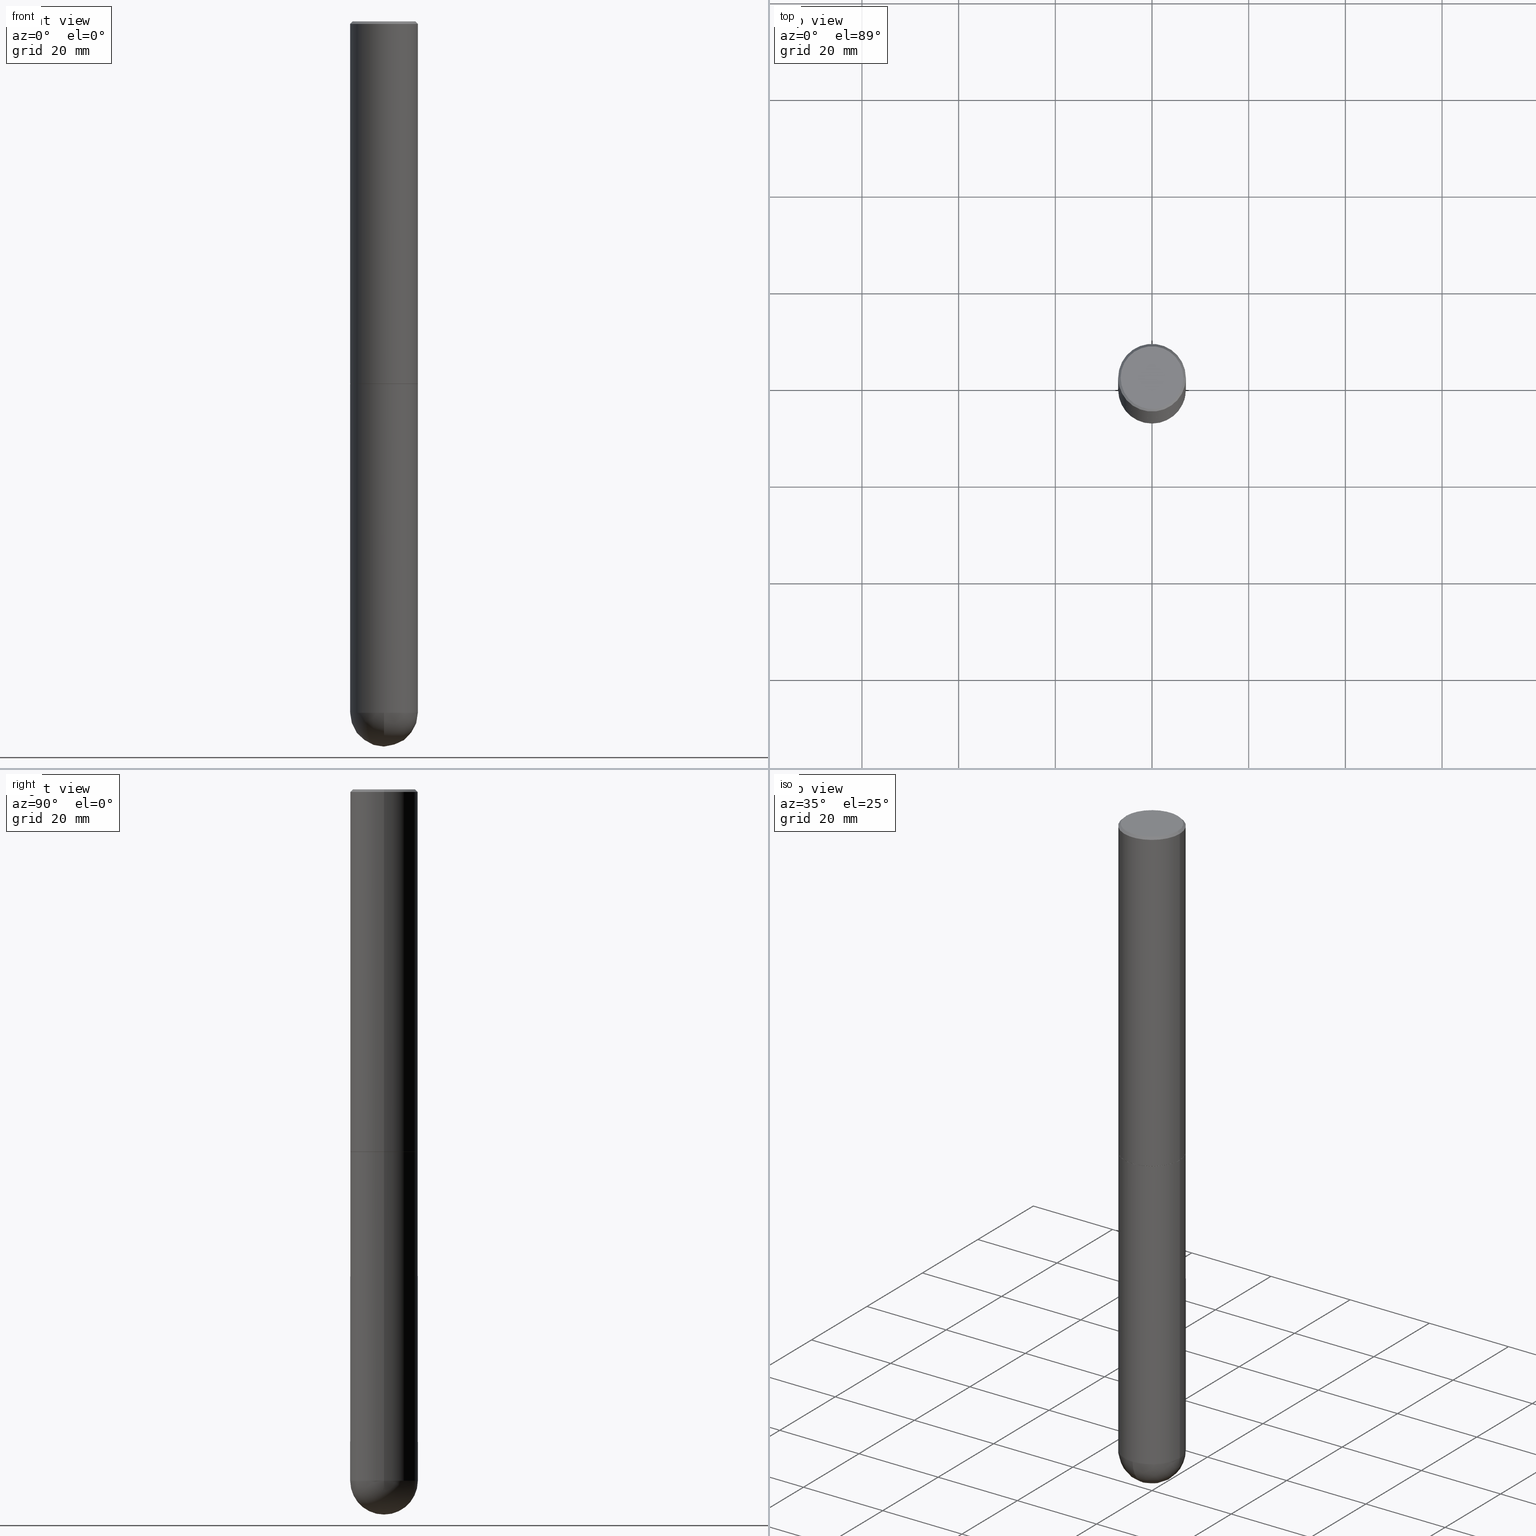
[diagram: canonical four-view strip — front | top / right | iso, engineering-drawing reading convention]
A machine part, canonical four-view strip (front | top / right | iso — engineering-drawing reading convention). The complete STEP part file that produces these views, byte-faithful:
ISO-10303-21;
HEADER;
FILE_DESCRIPTION (( 'STEP AP203' ),
    '1' );
FILE_NAME ('49604.STEP',
    '2024-04-10T12:29:55',
    ( '' ),
    ( '' ),
    'SwSTEP 2.0',
    'SolidWorks 2023',
    '' );
FILE_SCHEMA (( 'CONFIG_CONTROL_DESIGN' ));
ENDSEC;

DATA;
#1 = CARTESIAN_POINT ( 'NONE',  ( 7.220735744022853640E-29, -1.030929694920215659E-14, -2.952700000000000546 ) ) ;
#2 = CONICAL_SURFACE ( 'NONE', #311, 0.2756000000000000116, 0.7853981633974469467 ) ;
#3 = AXIS2_PLACEMENT_3D ( 'NONE', #215, #186, #182 ) ;
#4 = CALENDAR_DATE ( 2024, 10, 4 ) ;
#5 = CARTESIAN_POINT ( 'NONE',  ( -0.2756000000000000116, 1.854674887193472050E-15, -0.02000000000000006287 ) ) ;
#6 = ORIENTED_EDGE ( 'NONE', *, *, #56, .F. ) ;
#7 = LINE ( 'NONE', #5, #75 ) ;
#8 = CARTESIAN_POINT ( 'NONE',  ( -0.2756000000000000116, -1.302473808962275237E-14, -2.952700000000000102 ) ) ;
#9 = VERTEX_POINT ( 'NONE', #366 ) ;
#10 = AXIS2_PLACEMENT_3D ( 'NONE', #67, #244, #185 ) ;
#11 = AXIS2_PLACEMENT_3D ( 'NONE', #306, #376, #32 ) ;
#12 = CC_DESIGN_PERSON_AND_ORGANIZATION_ASSIGNMENT ( #221, #383, ( #88 ) ) ;
#13 = DATE_AND_TIME ( #190, #128 ) ;
#14 = ORIENTED_EDGE ( 'NONE', *, *, #181, .T. ) ;
#15 = CARTESIAN_POINT ( 'NONE',  ( -0.2756000000000002337, 1.958255779754837773E-15, -1.355658510874253128E-29 ) ) ;
#16 = DIRECTION ( 'NONE',  ( 6.982962677686267499E-15, 1.000000000000000000, 0.000000000000000000 ) ) ;
#17 = ORIENTED_EDGE ( 'NONE', *, *, #156, .T. ) ;
#18 = DIRECTION ( 'NONE',  ( -2.445468806185136597E-29, 3.491481338843145583E-15, 1.000000000000000000 ) ) ;
#19 = CC_DESIGN_PERSON_AND_ORGANIZATION_ASSIGNMENT ( #80, #350, ( #144 ) ) ;
#20 = AXIS2_PLACEMENT_3D ( 'NONE', #23, #269, #115 ) ;
#21 = CARTESIAN_POINT ( 'NONE',  ( 1.343662505402781410E-28, -2.013087315769307636E-14, -5.629900000000000126 ) ) ;
#22 = CARTESIAN_POINT ( 'NONE',  ( 7.218290275216666916E-29, -1.030580546786331359E-14, -2.951700000000000212 ) ) ;
#23 = CARTESIAN_POINT ( 'NONE',  ( 7.220735744022853640E-29, -1.030929694920215659E-14, -2.952700000000000546 ) ) ;
#24 = AXIS2_PLACEMENT_3D ( 'NONE', #242, #60, #248 ) ;
#25 = CIRCLE ( 'NONE', #323, 0.2756000000000000671 ) ;
#26 = ORIENTED_EDGE ( 'NONE', *, *, #103, .T. ) ;
#27 = DATE_AND_TIME ( #126, #268 ) ;
#28 = ADVANCED_FACE ( 'NONE', ( #179 ), #307, .F. ) ;
#29 = CONICAL_SURFACE ( 'NONE', #257, 0.2756000000000000116, 0.7853981633974469467 ) ;
#30 = CARTESIAN_POINT ( 'NONE',  ( 7.220735744022853640E-29, -1.030929694920215659E-14, -2.952700000000000546 ) ) ;
#31 = DIRECTION ( 'NONE',  ( 0.000000000000000000, 0.000000000000000000, 1.000000000000000000 ) ) ;
#32 = DIRECTION ( 'NONE',  ( 1.000000000000000000, -6.982962677686264344E-15, 0.000000000000000000 ) ) ;
#33 = CARTESIAN_POINT ( 'NONE',  ( 0.2746000000000000107, -1.222681850049480396E-14, -2.952700000000000546 ) ) ;
#34 = PERSON_AND_ORGANIZATION ( #321, #106 ) ;
#35 = EDGE_CURVE ( 'NONE', #379, #316, #58, .T. ) ;
#36 = CARTESIAN_POINT ( 'NONE',  ( 0.2756000000000004557, -1.223030998183365327E-14, -2.951700000000000212 ) ) ;
#37 = CONICAL_SURFACE ( 'NONE', #82, 0.2746000000000000107, 0.7853981633974995713 ) ;
#38 = ORIENTED_EDGE ( 'NONE', *, *, #231, .T. ) ;
#39 = COORDINATED_UNIVERSAL_TIME_OFFSET ( 5, 0, .BEHIND. ) ;
#40 = COORDINATED_UNIVERSAL_TIME_OFFSET ( 5, 0, .BEHIND. ) ;
#41 = ORIENTED_EDGE ( 'NONE', *, *, #35, .F. ) ;
#42 = CC_DESIGN_DATE_AND_TIME_ASSIGNMENT ( #13, #133, ( #88 ) ) ;
#43 = CARTESIAN_POINT ( 'NONE',  ( 4.890937612370288923E-31, -6.982962677686312563E-17, -0.02000000000000006287 ) ) ;
#44 = EDGE_CURVE ( 'NONE', #322, #50, #219, .T. ) ;
#45 = DIRECTION ( 'NONE',  ( -1.000000000000000000, 6.982962677686265922E-15, -4.876176775795935793E-29 ) ) ;
#46 = ORIENTED_EDGE ( 'NONE', *, *, #264, .T. ) ;
#47 = CARTESIAN_POINT ( 'NONE',  ( 4.890937612370288923E-31, -6.982962677686312563E-17, -0.02000000000000006287 ) ) ;
#48 = EDGE_CURVE ( 'NONE', #85, #77, #385, .T. ) ;
#49 = CARTESIAN_POINT ( 'NONE',  ( 4.890937612370288923E-31, -6.982962677686312563E-17, -0.02000000000000006287 ) ) ;
#50 = VERTEX_POINT ( 'NONE', #63 ) ;
#51 = FACE_OUTER_BOUND ( 'NONE', #239, .T. ) ;
#52 = VECTOR ( 'NONE', #217, 39.37007874015748143 ) ;
#53 = CIRCLE ( 'NONE', #165, 0.2746000000000000107 ) ;
#54 = DIRECTION ( 'NONE',  ( -2.445468806185136597E-29, 3.491481338843145583E-15, 1.000000000000000000 ) ) ;
#55 = VERTEX_POINT ( 'NONE', #213 ) ;
#56 = EDGE_CURVE ( 'NONE', #233, #336, #153, .T. ) ;
#57 = ORIENTED_EDGE ( 'NONE', *, *, #91, .T. ) ;
#58 = CIRCLE ( 'NONE', #229, 0.2756000000000000671 ) ;
#59 = AXIS2_PLACEMENT_3D ( 'NONE', #370, #296, #149 ) ;
#60 = DIRECTION ( 'NONE',  ( -2.445468806185136597E-29, 3.491481338843145583E-15, 1.000000000000000000 ) ) ;
#61 = APPLICATION_PROTOCOL_DEFINITION ( 'international standard', 'config_control_design', 1994, #158 ) ;
#62 = ADVANCED_FACE ( 'NONE', ( #93 ), #404, .T. ) ;
#63 = CARTESIAN_POINT ( 'NONE',  ( 0.2556000000000001604, -1.857063081596551214E-15, -1.536664496436020733E-16 ) ) ;
#64 =( LENGTH_UNIT ( ) NAMED_UNIT ( * ) SI_UNIT ( $, .METRE. ) );
#65 = PERSON_AND_ORGANIZATION ( #321, #106 ) ;
#66 = ADVANCED_FACE ( 'NONE', ( #343 ), #2, .T. ) ;
#67 = CARTESIAN_POINT ( 'NONE',  ( 1.343662505402781410E-28, -2.013087315769307636E-14, -5.629900000000000126 ) ) ;
#68 = PERSON_AND_ORGANIZATION_ROLE ( 'creator' ) ;
#69 = AXIS2_PLACEMENT_3D ( 'NONE', #114, #291, #267 ) ;
#70 = CALENDAR_DATE ( 2024, 10, 4 ) ;
#71 = FACE_OUTER_BOUND ( 'NONE', #297, .T. ) ;
#72 = ORIENTED_EDGE ( 'NONE', *, *, #283, .F. ) ;
#73 = PERSON_AND_ORGANIZATION ( #321, #106 ) ;
#74 = EDGE_LOOP ( 'NONE', ( #399, #389, #254, #256, #272 ) ) ;
#75 = VECTOR ( 'NONE', #289, 39.37007874015748143 ) ;
#76 = PRODUCT_RELATED_PRODUCT_CATEGORY ( 'detail', '', ( #398 ) ) ;
#77 = VERTEX_POINT ( 'NONE', #33 ) ;
#78 = LENGTH_MEASURE_WITH_UNIT ( LENGTH_MEASURE( 0.02539999999999999897 ), #64 );
#79 = ORIENTED_EDGE ( 'NONE', *, *, #264, .F. ) ;
#80 = PERSON_AND_ORGANIZATION ( #321, #106 ) ;
#81 = EDGE_LOOP ( 'NONE', ( #224, #329, #41, #331 ) ) ;
#82 = AXIS2_PLACEMENT_3D ( 'NONE', #113, #205, #141 ) ;
#83 = FACE_OUTER_BOUND ( 'NONE', #368, .T. ) ;
#84 = CARTESIAN_POINT ( 'NONE',  ( 7.220735744022853640E-29, -1.030929694920215659E-14, -2.952700000000000546 ) ) ;
#85 = VERTEX_POINT ( 'NONE', #390 ) ;
#86 = FACE_OUTER_BOUND ( 'NONE', #197, .T. ) ;
#87 = DIRECTION ( 'NONE',  ( -2.445468806185136597E-29, 3.491481338843145583E-15, 1.000000000000000000 ) ) ;
#88 = SECURITY_CLASSIFICATION ( '', '', #200 ) ;
#89 = DIRECTION ( 'NONE',  ( -1.000000000000000000, 6.982962677686267499E-15, 0.000000000000000000 ) ) ;
#90 = EDGE_LOOP ( 'NONE', ( #319, #175 ) ) ;
#91 = EDGE_CURVE ( 'NONE', #85, #347, #110, .T. ) ;
#92 = CARTESIAN_POINT ( 'NONE',  ( 0.000000000000000000, 0.000000000000000000, 0.000000000000000000 ) ) ;
#93 = FACE_OUTER_BOUND ( 'NONE', #81, .T. ) ;
#94 = APPLICATION_PROTOCOL_DEFINITION ( 'international standard', 'config_control_design', 1994, #351 ) ;
#95 = ADVANCED_FACE ( 'NONE', ( #71 ), #392, .T. ) ;
#96 = APPROVAL_PERSON_ORGANIZATION ( #183, #147, #209 ) ;
#97 = DIRECTION ( 'NONE',  ( 1.000000000000000000, 0.000000000000000000, 0.000000000000000000 ) ) ;
#98 = SPHERICAL_SURFACE ( 'NONE', #3, 0.2756000000000000671 ) ;
#99 = AXIS2_PLACEMENT_3D ( 'NONE', #302, #407, #342 ) ;
#100 = COORDINATED_UNIVERSAL_TIME_OFFSET ( 5, 0, .BEHIND. ) ;
#101 = PERSON_AND_ORGANIZATION ( #321, #106 ) ;
#102 = DIRECTION ( 'NONE',  ( 1.000000000000000000, -6.982962677686267499E-15, 0.000000000000000000 ) ) ;
#103 = EDGE_CURVE ( 'NONE', #347, #55, #400, .T. ) ;
#104 = CARTESIAN_POINT ( 'NONE',  ( -0.2556000000000001604, 1.819760073805041190E-15, -1.536664496436274155E-16 ) ) ;
#105 = ORIENTED_EDGE ( 'NONE', *, *, #169, .F. ) ;
#106 = ORGANIZATION ( 'UNSPECIFIED', 'UNSPECIFIED', '' ) ;
#107 = DATE_AND_TIME ( #381, #258 ) ;
#108 = PLANE ( 'NONE',  #334 ) ;
#109 = ORIENTED_EDGE ( 'NONE', *, *, #372, .F. ) ;
#110 = LINE ( 'NONE', #225, #210 ) ;
#111 = DIRECTION ( 'NONE',  ( 1.000000000000000000, -6.982962677686264344E-15, 0.000000000000000000 ) ) ;
#112 = ORIENTED_EDGE ( 'NONE', *, *, #349, .F. ) ;
#113 = CARTESIAN_POINT ( 'NONE',  ( 7.220735744022853640E-29, -1.030929694920215659E-14, -2.952700000000000546 ) ) ;
#114 = CARTESIAN_POINT ( 'NONE',  ( 0.000000000000000000, 0.000000000000000000, 0.000000000000000000 ) ) ;
#115 = DIRECTION ( 'NONE',  ( 1.000000000000000000, -6.982962677686265922E-15, 4.876176775795935793E-29 ) ) ;
#116 = ORIENTED_EDGE ( 'NONE', *, *, #212, .F. ) ;
#117 = AXIS2_PLACEMENT_3D ( 'NONE', #30, #278, #249 ) ;
#118 = LOCAL_TIME ( 8, 29, 55.00000000000000000, #193 ) ;
#119 = CARTESIAN_POINT ( 'NONE',  ( 7.218290275216666916E-29, -1.030580546786331359E-14, -2.951700000000000212 ) ) ;
#120 = DIRECTION ( 'NONE',  ( 1.000000000000000000, -6.982962677686264344E-15, 0.000000000000000000 ) ) ;
#121 = CC_DESIGN_DATE_AND_TIME_ASSIGNMENT ( #157, #218, ( #176 ) ) ;
#122 = DIRECTION ( 'NONE',  ( -2.445468806185136597E-29, 3.491481338843145583E-15, 1.000000000000000000 ) ) ;
#123 = PERSON_AND_ORGANIZATION_ROLE ( 'design_owner' ) ;
#124 = DIRECTION ( 'NONE',  ( 0.7071067811865465735, -7.319954787623252890E-15, -0.7071067811865484609 ) ) ;
#125 = CIRCLE ( 'NONE', #154, 0.2756000000000000116 ) ;
#126 = CALENDAR_DATE ( 2024, 10, 4 ) ;
#127 = AXIS2_PLACEMENT_3D ( 'NONE', #119, #288, #362 ) ;
#128 = LOCAL_TIME ( 8, 29, 55.00000000000000000, #40 ) ;
#129 = CARTESIAN_POINT ( 'NONE',  ( 4.890937612370288923E-31, -6.982962677686312563E-17, -0.02000000000000006287 ) ) ;
#130 = ORIENTED_EDGE ( 'NONE', *, *, #212, .T. ) ;
#131 = ADVANCED_FACE ( 'NONE', ( #86 ), #37, .T. ) ;
#132 = DIRECTION ( 'NONE',  ( -2.445468806185136597E-29, 3.491481338843145583E-15, 1.000000000000000000 ) ) ;
#133 = DATE_TIME_ROLE ( 'classification_date' ) ;
#134 = ORIENTED_EDGE ( 'NONE', *, *, #409, .T. ) ;
#135 = CIRCLE ( 'NONE', #152, 0.2756000000000000671 ) ;
#136 = DATE_AND_TIME ( #4, #118 ) ;
#137 = ORIENTED_EDGE ( 'NONE', *, *, #387, .T. ) ;
#138 =( NAMED_UNIT ( * ) SI_UNIT ( $, .STERADIAN. ) SOLID_ANGLE_UNIT ( ) );
#139 = DIRECTION ( 'NONE',  ( 1.000000000000000000, -6.982962677686269077E-15, 0.000000000000000000 ) ) ;
#140 = LINE ( 'NONE', #352, #230 ) ;
#141 = DIRECTION ( 'NONE',  ( 1.000000000000000000, -6.982962677686262766E-15, 0.000000000000000000 ) ) ;
#142 = DIRECTION ( 'NONE',  ( 1.000000000000000000, -6.982962677686262766E-15, 0.000000000000000000 ) ) ;
#143 = CIRCLE ( 'NONE', #345, 0.2756000000000000116 ) ;
#144 = PRODUCT_DEFINITION_FORMATION_WITH_SPECIFIED_SOURCE ( 'ANY', '', #398, .NOT_KNOWN. ) ;
#145 = PLANE ( 'NONE',  #20 ) ;
#146 = ORIENTED_EDGE ( 'NONE', *, *, #283, .T. ) ;
#147 = APPROVAL ( #155, 'UNSPECIFIED' ) ;
#148 = DIMENSIONAL_EXPONENTS ( 1.000000000000000000, 0.000000000000000000, 0.000000000000000000, 0.000000000000000000, 0.000000000000000000, 0.000000000000000000, 0.000000000000000000 ) ;
#149 = DIRECTION ( 'NONE',  ( 1.000000000000000000, -6.982962677686264344E-15, 0.000000000000000000 ) ) ;
#150 = LINE ( 'NONE', #170, #265 ) ;
#151 = EDGE_LOOP ( 'NONE', ( #310, #270, #46, #146 ) ) ;
#152 = AXIS2_PLACEMENT_3D ( 'NONE', #259, #314, #16 ) ;
#153 = LINE ( 'NONE', #410, #52 ) ;
#154 = AXIS2_PLACEMENT_3D ( 'NONE', #49, #328, #361 ) ;
#155 = APPROVAL_STATUS ( 'not_yet_approved' ) ;
#156 = EDGE_CURVE ( 'NONE', #357, #191, #150, .T. ) ;
#157 = DATE_AND_TIME ( #70, #339 ) ;
#158 = APPLICATION_CONTEXT ( 'configuration controlled 3d designs of mechanical parts and assemblies' ) ;
#159 = LINE ( 'NONE', #279, #211 ) ;
#160 = DIRECTION ( 'NONE',  ( -0.7071067811865837660, 7.493145998870485111E-15, 0.7071067811865112684 ) ) ;
#161 = EDGE_CURVE ( 'NONE', #261, #336, #143, .T. ) ;
#162 = APPROVAL_STATUS ( 'not_yet_approved' ) ;
#163 = CARTESIAN_POINT ( 'NONE',  ( 0.2756000000000000116, -1.960582874962697406E-15, -0.02000000000000006287 ) ) ;
#164 = AXIS2_PLACEMENT_3D ( 'NONE', #333, #54, #397 ) ;
#165 = AXIS2_PLACEMENT_3D ( 'NONE', #84, #18, #142 ) ;
#166 = SHAPE_DEFINITION_REPRESENTATION ( #332, #243 ) ;
#167 = ADVANCED_FACE ( 'NONE', ( #83 ), #29, .T. ) ;
#168 = APPROVAL_STATUS ( 'not_yet_approved' ) ;
#169 = EDGE_CURVE ( 'NONE', #292, #316, #293, .T. ) ;
#170 = CARTESIAN_POINT ( 'NONE',  ( 0.2756000000000002337, -1.924504513970336926E-15, 1.343874319409361109E-29 ) ) ;
#171 = ORIENTED_EDGE ( 'NONE', *, *, #335, .T. ) ;
#172 = FACE_OUTER_BOUND ( 'NONE', #207, .T. ) ;
#173 = FACE_OUTER_BOUND ( 'NONE', #74, .T. ) ;
#174 = ORIENTED_EDGE ( 'NONE', *, *, #181, .F. ) ;
#175 = ORIENTED_EDGE ( 'NONE', *, *, #161, .T. ) ;
#176 = PRODUCT_DEFINITION ( 'UNKNOWN', '', #144, #369 ) ;
#177 = CYLINDRICAL_SURFACE ( 'NONE', #246, 0.2756000000000000671 ) ;
#178 = DIRECTION ( 'NONE',  ( -2.445468806185136877E-29, 3.491481338843145188E-15, 1.000000000000000000 ) ) ;
#179 = FACE_OUTER_BOUND ( 'NONE', #402, .T. ) ;
#180 = CIRCLE ( 'NONE', #11, 0.2756000000000000671 ) ;
#181 = EDGE_CURVE ( 'NONE', #347, #357, #299, .T. ) ;
#182 = DIRECTION ( 'NONE',  ( 6.982962677686265922E-15, 1.000000000000000000, -3.964946289788479319E-15 ) ) ;
#183 = PERSON_AND_ORGANIZATION ( #321, #106 ) ;
#184 = EDGE_CURVE ( 'NONE', #336, #261, #206, .T. ) ;
#185 = DIRECTION ( 'NONE',  ( 6.982962677686265922E-15, 1.000000000000000000, -3.964946289788479319E-15 ) ) ;
#186 = DIRECTION ( 'NONE',  ( -1.000000000000000000, 6.982962677686265922E-15, -4.883557194083112901E-29 ) ) ;
#187 = ADVANCED_FACE ( 'NONE', ( #51 ), #177, .T. ) ;
#188 = CYLINDRICAL_SURFACE ( 'NONE', #378, 0.2756000000000002337 ) ;
#189 = ADVANCED_FACE ( 'NONE', ( #172 ), #145, .F. ) ;
#190 = CALENDAR_DATE ( 2024, 10, 4 ) ;
#191 = VERTEX_POINT ( 'NONE', #364 ) ;
#192 = AXIS2_PLACEMENT_3D ( 'NONE', #129, #255, #102 ) ;
#193 = COORDINATED_UNIVERSAL_TIME_OFFSET ( 5, 0, .BEHIND. ) ;
#194 = CARTESIAN_POINT ( 'NONE',  ( -1.958255779754700116E-15, -0.2756000000000199956, -5.629899999999999238 ) ) ;
#195 = ORIENTED_EDGE ( 'NONE', *, *, #349, .T. ) ;
#196 = ORIENTED_EDGE ( 'NONE', *, *, #223, .T. ) ;
#197 = EDGE_LOOP ( 'NONE', ( #204, #57, #371, #112 ) ) ;
#198 = APPROVAL ( #162, 'UNSPECIFIED' ) ;
#199 = DIRECTION ( 'NONE',  ( 2.445468806185136597E-29, -3.491481338843145583E-15, -1.000000000000000000 ) ) ;
#200 = SECURITY_CLASSIFICATION_LEVEL ( 'unclassified' ) ;
#201 = ORIENTED_EDGE ( 'NONE', *, *, #48, .F. ) ;
#202 = DIRECTION ( 'NONE',  ( -2.445468806185136877E-29, 3.491481338843145188E-15, 1.000000000000000000 ) ) ;
#203 = CYLINDRICAL_SURFACE ( 'NONE', #69, 0.2756000000000000671 ) ;
#204 = ORIENTED_EDGE ( 'NONE', *, *, #372, .T. ) ;
#205 = DIRECTION ( 'NONE',  ( -2.445468806185136597E-29, 3.491481338843145583E-15, 1.000000000000000000 ) ) ;
#206 = CIRCLE ( 'NONE', #359, 0.2756000000000000116 ) ;
#207 = EDGE_LOOP ( 'NONE', ( #109, #201 ) ) ;
#208 = MANIFOLD_SOLID_BREP ( 'Body-Move/Copy2[2]', #406 ) ;
#209 = APPROVAL_ROLE ( '' ) ;
#210 = VECTOR ( 'NONE', #160, 39.37007874015748143 ) ;
#211 = VECTOR ( 'NONE', #412, 39.37007874015748143 ) ;
#212 = EDGE_CURVE ( 'NONE', #50, #322, #220, .T. ) ;
#213 = CARTESIAN_POINT ( 'NONE',  ( -0.2756000000000000116, 1.854674887193472050E-15, -0.02000000000000006287 ) ) ;
#214 = MECHANICAL_CONTEXT ( 'NONE', #351, 'mechanical' ) ;
#215 = CARTESIAN_POINT ( 'NONE',  ( 1.343662505402781410E-28, -2.013087315769307636E-14, -5.629900000000000126 ) ) ;
#216 = CIRCLE ( 'NONE', #59, 0.2756000000000000671 ) ;
#217 = DIRECTION ( 'NONE',  ( -2.445468806185136877E-29, 3.491481338843145188E-15, 1.000000000000000000 ) ) ;
#218 = DATE_TIME_ROLE ( 'creation_date' ) ;
#219 = CIRCLE ( 'NONE', #24, 0.2556000000000001604 ) ;
#220 = CIRCLE ( 'NONE', #373, 0.2556000000000001604 ) ;
#221 = PERSON_AND_ORGANIZATION ( #321, #106 ) ;
#222 = CARTESIAN_POINT ( 'NONE',  ( 0.2756000000000000116, -1.223380146317248997E-14, -2.952700000000000102 ) ) ;
#223 = EDGE_CURVE ( 'NONE', #357, #347, #294, .T. ) ;
#224 = ORIENTED_EDGE ( 'NONE', *, *, #335, .F. ) ;
#225 = CARTESIAN_POINT ( 'NONE',  ( -0.2746000000000000107, -8.358146596804921801E-15, -2.952700000000000546 ) ) ;
#226 = CARTESIAN_POINT ( 'NONE',  ( 1.924504513970407529E-15, 0.2755999999999896866, -2.952700000000000990 ) ) ;
#227 = EDGE_LOOP ( 'NONE', ( #356, #14, #17, #72 ) ) ;
#228 = DIRECTION ( 'NONE',  ( -2.445468806185136597E-29, 3.491481338843145583E-15, 1.000000000000000000 ) ) ;
#229 = AXIS2_PLACEMENT_3D ( 'NONE', #304, #122, #120 ) ;
#230 = VECTOR ( 'NONE', #263, 39.37007874015748143 ) ;
#231 = EDGE_CURVE ( 'NONE', #233, #9, #216, .T. ) ;
#232 = DIRECTION ( 'NONE',  ( 1.000000000000000000, -6.982962677686265922E-15, 0.000000000000000000 ) ) ;
#233 = VERTEX_POINT ( 'NONE', #271 ) ;
#234 = ORIENTED_EDGE ( 'NONE', *, *, #358, .T. ) ;
#235 = DIRECTION ( 'NONE',  ( 2.445468806185136597E-29, -3.491481338843145583E-15, -1.000000000000000000 ) ) ;
#236 = CLOSED_SHELL ( 'NONE', ( #187, #62, #391, #353, #365 ) ) ;
#237 = AXIS2_PLACEMENT_3D ( 'NONE', #374, #31, #97 ) ;
#238 = DIRECTION ( 'NONE',  ( -2.445468806185136597E-29, 3.491481338843145583E-15, 1.000000000000000000 ) ) ;
#239 = EDGE_LOOP ( 'NONE', ( #287, #134, #395, #6, #38 ) ) ;
#240 = APPROVAL ( #168, 'UNSPECIFIED' ) ;
#241 = UNCERTAINTY_MEASURE_WITH_UNIT (LENGTH_MEASURE( 1.000000000000000082E-05 ), #320, 'distance_accuracy_value', 'NONE');
#242 = CARTESIAN_POINT ( 'NONE',  ( 3.757865091606790961E-45, -5.365235413369609811E-31, -1.536664496436148184E-16 ) ) ;
#243 = ADVANCED_BREP_SHAPE_REPRESENTATION ( '49604', ( #341, #208, #237 ), #386 ) ;
#244 = DIRECTION ( 'NONE',  ( -1.000000000000000000, 6.982962677686265922E-15, -4.883557194083112901E-29 ) ) ;
#245 = AXIS2_PLACEMENT_3D ( 'NONE', #21, #298, #266 ) ;
#246 = AXIS2_PLACEMENT_3D ( 'NONE', #92, #228, #360 ) ;
#247 = CC_DESIGN_PERSON_AND_ORGANIZATION_ASSIGNMENT ( #274, #68, ( #176 ) ) ;
#248 = DIRECTION ( 'NONE',  ( 1.000000000000000000, -6.982962677686265922E-15, 4.876943595080609932E-29 ) ) ;
#249 = DIRECTION ( 'NONE',  ( 1.000000000000000000, -6.982962677686262766E-15, 0.000000000000000000 ) ) ;
#250 = APPROVAL_DATE_TIME ( #27, #147 ) ;
#251 = CARTESIAN_POINT ( 'NONE',  ( -0.2756000000000000671, -1.302473808962275553E-14, -5.629900000000000126 ) ) ;
#252 = AXIS2_PLACEMENT_3D ( 'NONE', #22, #87, #139 ) ;
#253 = PERSON_AND_ORGANIZATION_ROLE ( 'creator' ) ;
#254 = ORIENTED_EDGE ( 'NONE', *, *, #280, .T. ) ;
#255 = DIRECTION ( 'NONE',  ( -2.445468806185136597E-29, 3.491481338843145583E-15, 1.000000000000000000 ) ) ;
#256 = ORIENTED_EDGE ( 'NONE', *, *, #56, .T. ) ;
#257 = AXIS2_PLACEMENT_3D ( 'NONE', #47, #235, #89 ) ;
#258 = LOCAL_TIME ( 8, 29, 55.00000000000000000, #39 ) ;
#259 = CARTESIAN_POINT ( 'NONE',  ( 1.343662505402781410E-28, -2.013087315769307636E-14, -5.629900000000000126 ) ) ;
#260 = ORIENTED_EDGE ( 'NONE', *, *, #91, .F. ) ;
#261 = VERTEX_POINT ( 'NONE', #8 ) ;
#262 = DIRECTION ( 'NONE',  ( 1.000000000000000000, -6.982962677686265922E-15, 4.876943595080609932E-29 ) ) ;
#263 = DIRECTION ( 'NONE',  ( 0.7071067811865837660, -2.468850131082636503E-15, 0.7071067811865112684 ) ) ;
#264 = EDGE_CURVE ( 'NONE', #322, #55, #7, .T. ) ;
#265 = VECTOR ( 'NONE', #202, 39.37007874015748143 ) ;
#266 = DIRECTION ( 'NONE',  ( -7.105427357601001859E-15, -1.000000000000000000, 0.000000000000000000 ) ) ;
#267 = DIRECTION ( 'NONE',  ( 1.000000000000000000, -6.982962677686267499E-15, 4.876176775795935793E-29 ) ) ;
#268 = LOCAL_TIME ( 8, 29, 55.00000000000000000, #100 ) ;
#269 = DIRECTION ( 'NONE',  ( -2.438088387897960049E-29, 3.491481338843145188E-15, 1.000000000000000000 ) ) ;
#270 = ORIENTED_EDGE ( 'NONE', *, *, #44, .F. ) ;
#271 = CARTESIAN_POINT ( 'NONE',  ( 0.2756000000000000671, -1.690749838334792865E-14, -5.629900000000000126 ) ) ;
#272 = ORIENTED_EDGE ( 'NONE', *, *, #161, .F. ) ;
#273 = DIRECTION ( 'NONE',  ( -2.445468806185136597E-29, 3.491481338843145583E-15, 1.000000000000000000 ) ) ;
#274 = PERSON_AND_ORGANIZATION ( #321, #106 ) ;
#275 = DIRECTION ( 'NONE',  ( -2.445468806185136597E-29, 3.491481338843145583E-15, 1.000000000000000000 ) ) ;
#276 = VECTOR ( 'NONE', #178, 39.37007874015748143 ) ;
#277 = CONICAL_SURFACE ( 'NONE', #312, 0.2746000000000000107, 0.7853981633974995713 ) ;
#278 = DIRECTION ( 'NONE',  ( -2.445468806185136597E-29, 3.491481338843145583E-15, 1.000000000000000000 ) ) ;
#279 = CARTESIAN_POINT ( 'NONE',  ( -0.2756000000000000671, 1.958255779754836589E-15, -1.355658510874252287E-29 ) ) ;
#280 = EDGE_CURVE ( 'NONE', #316, #233, #25, .T. ) ;
#281 = FACE_OUTER_BOUND ( 'NONE', #290, .T. ) ;
#282 = VECTOR ( 'NONE', #124, 39.37007874015748143 ) ;
#283 = EDGE_CURVE ( 'NONE', #55, #191, #338, .T. ) ;
#284 = ORIENTED_EDGE ( 'NONE', *, *, #48, .T. ) ;
#285 = CC_DESIGN_APPROVAL ( #147, ( #176 ) ) ;
#286 = APPROVAL_ROLE ( '' ) ;
#287 = ORIENTED_EDGE ( 'NONE', *, *, #380, .T. ) ;
#288 = DIRECTION ( 'NONE',  ( -2.445468806185136597E-29, 3.491481338843145583E-15, 1.000000000000000000 ) ) ;
#289 = DIRECTION ( 'NONE',  ( -0.7071067811865465735, 2.468850131082246805E-15, -0.7071067811865484609 ) ) ;
#290 = EDGE_LOOP ( 'NONE', ( #105, #171, #363, #326 ) ) ;
#291 = DIRECTION ( 'NONE',  ( -2.445468806185136597E-29, 3.491481338843145583E-15, 1.000000000000000000 ) ) ;
#292 = VERTEX_POINT ( 'NONE', #309 ) ;
#293 = CIRCLE ( 'NONE', #245, 0.2756000000000000671 ) ;
#294 = CIRCLE ( 'NONE', #252, 0.2756000000000004557 ) ;
#295 = ORIENTED_EDGE ( 'NONE', *, *, #44, .T. ) ;
#296 = DIRECTION ( 'NONE',  ( -2.445468806185136597E-29, 3.491481338843145583E-15, 1.000000000000000000 ) ) ;
#297 = EDGE_LOOP ( 'NONE', ( #196, #26, #354, #384 ) ) ;
#298 = DIRECTION ( 'NONE',  ( -1.000000000000000000, 7.105427357601001070E-15, -4.926315508542082329E-29 ) ) ;
#299 = CIRCLE ( 'NONE', #127, 0.2756000000000004557 ) ;
#300 = CC_DESIGN_APPROVAL ( #198, ( #144 ) ) ;
#301 = CC_DESIGN_PERSON_AND_ORGANIZATION_ASSIGNMENT ( #101, #253, ( #144 ) ) ;
#302 = CARTESIAN_POINT ( 'NONE',  ( 1.784845260416610724E-15, 0.2556000000000001604, -9.692558550301160007E-16 ) ) ;
#303 = FACE_OUTER_BOUND ( 'NONE', #337, .T. ) ;
#304 = CARTESIAN_POINT ( 'NONE',  ( 1.376774483194169922E-28, -1.965669078955302449E-14, -5.629900000000000126 ) ) ;
#305 = APPROVAL_PERSON_ORGANIZATION ( #73, #240, #286 ) ;
#306 = CARTESIAN_POINT ( 'NONE',  ( 1.376774483194169922E-28, -1.965669078955302449E-14, -5.629900000000000126 ) ) ;
#307 = PLANE ( 'NONE',  #99 ) ;
#308 = DIRECTION ( 'NONE',  ( 1.000000000000000000, -6.982962677686267499E-15, 4.876176775795935793E-29 ) ) ;
#309 = CARTESIAN_POINT ( 'NONE',  ( 1.412238044847732931E-28, -2.107624978178599697E-14, -5.905499999999999972 ) ) ;
#310 = ORIENTED_EDGE ( 'NONE', *, *, #387, .F. ) ;
#311 = AXIS2_PLACEMENT_3D ( 'NONE', #43, #199, #355 ) ;
#312 = AXIS2_PLACEMENT_3D ( 'NONE', #1, #275, #344 ) ;
#313 = APPROVAL_DATE_TIME ( #136, #240 ) ;
#314 = DIRECTION ( 'NONE',  ( 1.000000000000000000, -6.982962677686265922E-15, 4.883557194083112340E-29 ) ) ;
#315 = CC_DESIGN_PERSON_AND_ORGANIZATION_ASSIGNMENT ( #65, #123, ( #398 ) ) ;
#316 = VERTEX_POINT ( 'NONE', #194 ) ;
#317 = APPROVAL_DATE_TIME ( #107, #198 ) ;
#318 = FACE_OUTER_BOUND ( 'NONE', #90, .T. ) ;
#319 = ORIENTED_EDGE ( 'NONE', *, *, #184, .T. ) ;
#320 =( CONVERSION_BASED_UNIT ( 'INCH', #78 ) LENGTH_UNIT ( ) NAMED_UNIT ( #148 ) );
#321 = PERSON ( 'UNSPECIFIED', 'UNSPECIFIED', 'UNSPECIFIED', ('UNSPECIFIED'), ('UNSPECIFIED'), ('UNSPECIFIED') ) ;
#322 = VERTEX_POINT ( 'NONE', #104 ) ;
#323 = AXIS2_PLACEMENT_3D ( 'NONE', #382, #132, #111 ) ;
#324 = CARTESIAN_POINT ( 'NONE',  ( 3.757865091606790961E-45, -5.365235413369609811E-31, -1.536664496436148184E-16 ) ) ;
#325 = DIRECTION ( 'NONE',  ( 2.438088387897960049E-29, -3.491481338843145188E-15, -1.000000000000000000 ) ) ;
#326 = ORIENTED_EDGE ( 'NONE', *, *, #280, .F. ) ;
#327 = CARTESIAN_POINT ( 'NONE',  ( 7.220735744022852519E-29, -1.030929694920215502E-14, -2.952700000000000102 ) ) ;
#328 = DIRECTION ( 'NONE',  ( -2.445468806185136597E-29, 3.491481338843145583E-15, 1.000000000000000000 ) ) ;
#329 = ORIENTED_EDGE ( 'NONE', *, *, #169, .T. ) ;
#330 = CARTESIAN_POINT ( 'NONE',  ( 7.220735744022852519E-29, -1.030929694920215502E-14, -2.952700000000000102 ) ) ;
#331 = ORIENTED_EDGE ( 'NONE', *, *, #380, .F. ) ;
#332 = PRODUCT_DEFINITION_SHAPE ( 'NONE', 'NONE',  #176 ) ;
#333 = CARTESIAN_POINT ( 'NONE',  ( 0.000000000000000000, 0.000000000000000000, 0.000000000000000000 ) ) ;
#334 = AXIS2_PLACEMENT_3D ( 'NONE', #226, #325, #45 ) ;
#335 = EDGE_CURVE ( 'NONE', #292, #9, #135, .T. ) ;
#336 = VERTEX_POINT ( 'NONE', #222 ) ;
#337 = EDGE_LOOP ( 'NONE', ( #260, #284, #195, #174 ) ) ;
#338 = CIRCLE ( 'NONE', #192, 0.2756000000000000116 ) ;
#339 = LOCAL_TIME ( 8, 29, 55.00000000000000000, #405 ) ;
#340 = CARTESIAN_POINT ( 'NONE',  ( 0.000000000000000000, 0.000000000000000000, 0.000000000000000000 ) ) ;
#341 = MANIFOLD_SOLID_BREP ( 'Body-Move/Copy2[1]', #236 ) ;
#342 = DIRECTION ( 'NONE',  ( -1.000000000000000000, 6.982962677686265922E-15, -4.876176775795935793E-29 ) ) ;
#343 = FACE_OUTER_BOUND ( 'NONE', #151, .T. ) ;
#344 = DIRECTION ( 'NONE',  ( 1.000000000000000000, -6.982962677686262766E-15, 0.000000000000000000 ) ) ;
#345 = AXIS2_PLACEMENT_3D ( 'NONE', #327, #238, #232 ) ;
#346 = CC_DESIGN_APPROVAL ( #240, ( #88 ) ) ;
#347 = VERTEX_POINT ( 'NONE', #388 ) ;
#348 =( NAMED_UNIT ( * ) PLANE_ANGLE_UNIT ( ) SI_UNIT ( $, .RADIAN. ) );
#349 = EDGE_CURVE ( 'NONE', #77, #357, #140, .T. ) ;
#350 = PERSON_AND_ORGANIZATION_ROLE ( 'design_supplier' ) ;
#351 = APPLICATION_CONTEXT ( 'configuration controlled 3d designs of mechanical parts and assemblies' ) ;
#352 = CARTESIAN_POINT ( 'NONE',  ( 0.2746000000000000107, -1.222681850049480396E-14, -2.952700000000000546 ) ) ;
#353 = ADVANCED_FACE ( 'NONE', ( #318 ), #108, .F. ) ;
#354 = ORIENTED_EDGE ( 'NONE', *, *, #358, .F. ) ;
#355 = DIRECTION ( 'NONE',  ( -1.000000000000000000, 6.982962677686267499E-15, 0.000000000000000000 ) ) ;
#356 = ORIENTED_EDGE ( 'NONE', *, *, #103, .F. ) ;
#357 = VERTEX_POINT ( 'NONE', #36 ) ;
#358 = EDGE_CURVE ( 'NONE', #191, #55, #125, .T. ) ;
#359 = AXIS2_PLACEMENT_3D ( 'NONE', #330, #401, #393 ) ;
#360 = DIRECTION ( 'NONE',  ( 1.000000000000000000, -6.982962677686267499E-15, 4.876176775795935793E-29 ) ) ;
#361 = DIRECTION ( 'NONE',  ( 1.000000000000000000, -6.982962677686267499E-15, 0.000000000000000000 ) ) ;
#362 = DIRECTION ( 'NONE',  ( 1.000000000000000000, -6.982962677686269077E-15, 0.000000000000000000 ) ) ;
#363 = ORIENTED_EDGE ( 'NONE', *, *, #231, .F. ) ;
#364 = CARTESIAN_POINT ( 'NONE',  ( 0.2756000000000000116, -1.960582874962697406E-15, -0.02000000000000006287 ) ) ;
#365 = ADVANCED_FACE ( 'NONE', ( #173 ), #203, .T. ) ;
#366 = CARTESIAN_POINT ( 'NONE',  ( 1.924504513970471427E-15, 0.2755999999999801942, -5.629900000000001015 ) ) ;
#367 = CC_DESIGN_SECURITY_CLASSIFICATION ( #88, ( #144 ) ) ;
#368 = EDGE_LOOP ( 'NONE', ( #116, #137, #234, #79 ) ) ;
#369 = DESIGN_CONTEXT ( 'detailed design', #158, 'design' ) ;
#370 = CARTESIAN_POINT ( 'NONE',  ( 1.376774483194169922E-28, -1.965669078955302449E-14, -5.629900000000000126 ) ) ;
#371 = ORIENTED_EDGE ( 'NONE', *, *, #223, .F. ) ;
#372 = EDGE_CURVE ( 'NONE', #77, #85, #53, .T. ) ;
#373 = AXIS2_PLACEMENT_3D ( 'NONE', #324, #273, #262 ) ;
#374 = CARTESIAN_POINT ( 'NONE',  ( 0.000000000000000000, 0.000000000000000000, 0.000000000000000000 ) ) ;
#375 = LINE ( 'NONE', #163, #282 ) ;
#376 = DIRECTION ( 'NONE',  ( -2.445468806185136597E-29, 3.491481338843145583E-15, 1.000000000000000000 ) ) ;
#377 = ADVANCED_FACE ( 'NONE', ( #394 ), #188, .T. ) ;
#378 = AXIS2_PLACEMENT_3D ( 'NONE', #340, #411, #308 ) ;
#379 = VERTEX_POINT ( 'NONE', #251 ) ;
#380 = EDGE_CURVE ( 'NONE', #9, #379, #180, .T. ) ;
#381 = CALENDAR_DATE ( 2024, 10, 4 ) ;
#382 = CARTESIAN_POINT ( 'NONE',  ( 1.376774483194169922E-28, -1.965669078955302449E-14, -5.629900000000000126 ) ) ;
#383 = PERSON_AND_ORGANIZATION_ROLE ( 'classification_officer' ) ;
#384 = ORIENTED_EDGE ( 'NONE', *, *, #156, .F. ) ;
#385 = CIRCLE ( 'NONE', #117, 0.2746000000000000107 ) ;
#386 =( GEOMETRIC_REPRESENTATION_CONTEXT ( 3 ) GLOBAL_UNCERTAINTY_ASSIGNED_CONTEXT ( ( #241 ) ) GLOBAL_UNIT_ASSIGNED_CONTEXT ( ( #320, #348, #138 ) ) REPRESENTATION_CONTEXT ( 'NONE', 'WORKASPACE' ) );
#387 = EDGE_CURVE ( 'NONE', #50, #191, #375, .T. ) ;
#388 = CARTESIAN_POINT ( 'NONE',  ( -0.2756000000000004002, -3.229561767565246331E-15, -2.951700000000000212 ) ) ;
#389 = ORIENTED_EDGE ( 'NONE', *, *, #35, .T. ) ;
#390 = CARTESIAN_POINT ( 'NONE',  ( -0.2746000000000000107, -8.352848142456696244E-15, -2.952700000000000546 ) ) ;
#391 = ADVANCED_FACE ( 'NONE', ( #281 ), #98, .T. ) ;
#392 = CYLINDRICAL_SURFACE ( 'NONE', #164, 0.2756000000000002337 ) ;
#393 = DIRECTION ( 'NONE',  ( 1.000000000000000000, -6.982962677686265922E-15, 0.000000000000000000 ) ) ;
#394 = FACE_OUTER_BOUND ( 'NONE', #227, .T. ) ;
#395 = ORIENTED_EDGE ( 'NONE', *, *, #184, .F. ) ;
#396 = ADVANCED_FACE ( 'NONE', ( #303 ), #277, .T. ) ;
#397 = DIRECTION ( 'NONE',  ( 1.000000000000000000, -6.982962677686267499E-15, 4.876176775795935793E-29 ) ) ;
#398 = PRODUCT ( '49604', '49604', '', ( #214 ) ) ;
#399 = ORIENTED_EDGE ( 'NONE', *, *, #409, .F. ) ;
#400 = LINE ( 'NONE', #15, #276 ) ;
#401 = DIRECTION ( 'NONE',  ( -2.445468806185136597E-29, 3.491481338843145583E-15, 1.000000000000000000 ) ) ;
#402 = EDGE_LOOP ( 'NONE', ( #295, #130 ) ) ;
#403 = APPROVAL_ROLE ( '' ) ;
#404 = SPHERICAL_SURFACE ( 'NONE', #10, 0.2756000000000000671 ) ;
#405 = COORDINATED_UNIVERSAL_TIME_OFFSET ( 5, 0, .BEHIND. ) ;
#406 = CLOSED_SHELL ( 'NONE', ( #131, #95, #167, #66, #377, #396, #189, #28 ) ) ;
#407 = DIRECTION ( 'NONE',  ( 2.438088387897960049E-29, -3.491481338843145188E-15, -1.000000000000000000 ) ) ;
#408 = APPROVAL_PERSON_ORGANIZATION ( #34, #198, #403 ) ;
#409 = EDGE_CURVE ( 'NONE', #379, #261, #159, .T. ) ;
#410 = CARTESIAN_POINT ( 'NONE',  ( 0.2756000000000000671, -1.924504513970335743E-15, 1.343874319409360268E-29 ) ) ;
#411 = DIRECTION ( 'NONE',  ( -2.445468806185136597E-29, 3.491481338843145583E-15, 1.000000000000000000 ) ) ;
#412 = DIRECTION ( 'NONE',  ( -2.445468806185136877E-29, 3.491481338843145188E-15, 1.000000000000000000 ) ) ;
ENDSEC;
END-ISO-10303-21;
